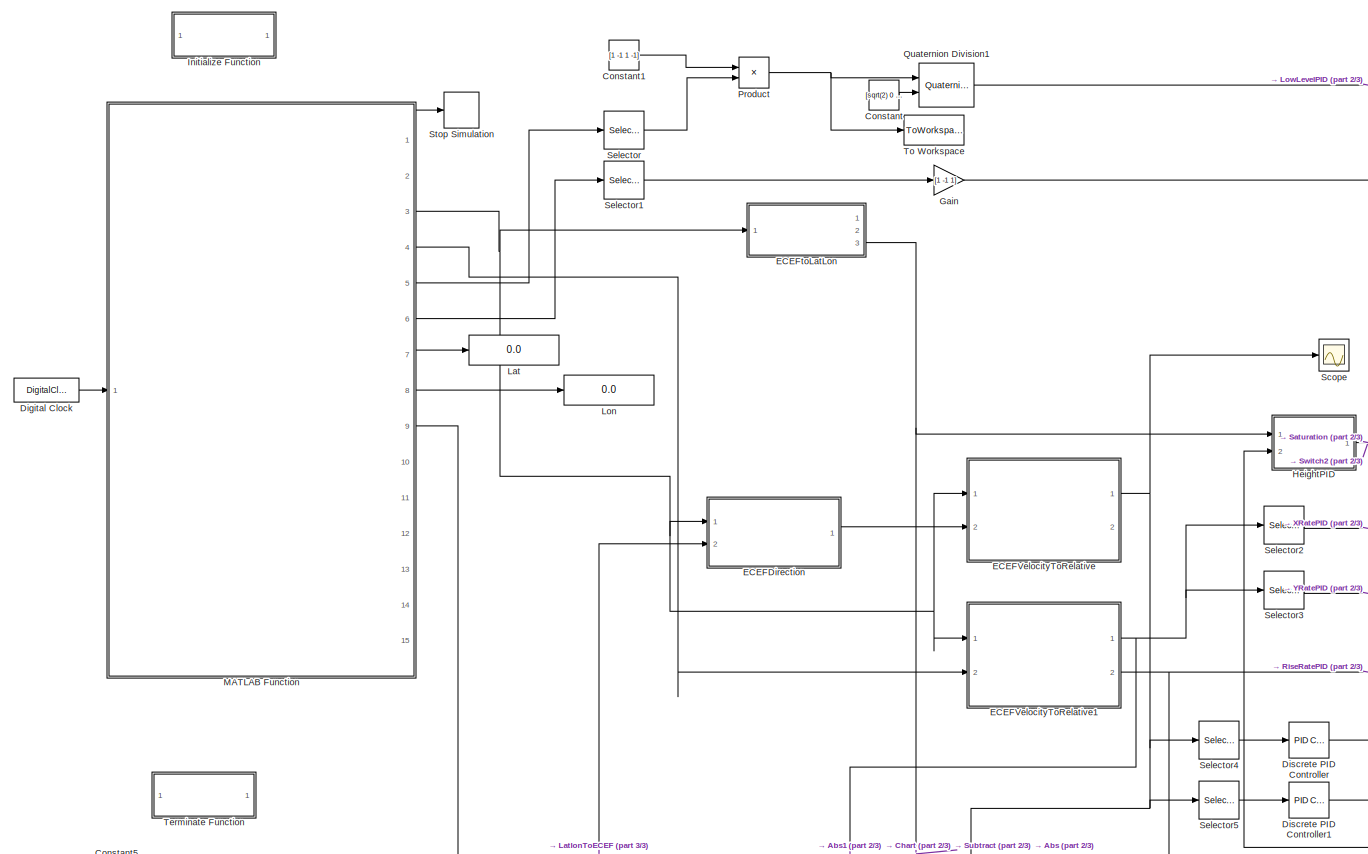
[diagram: root canvas - part 1/3, left side, full height]
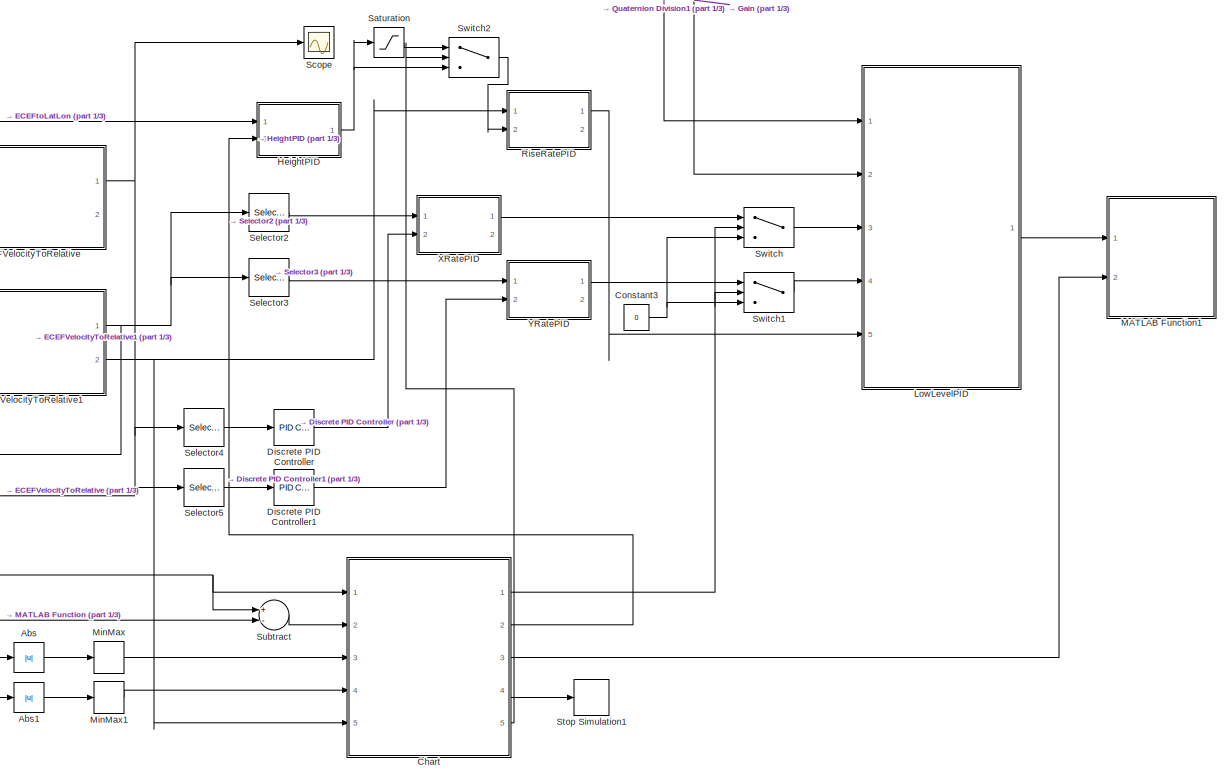
[diagram: root canvas - part 2/3, middle right region]
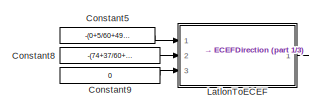
[diagram: root canvas - part 3/3, bottom left region]
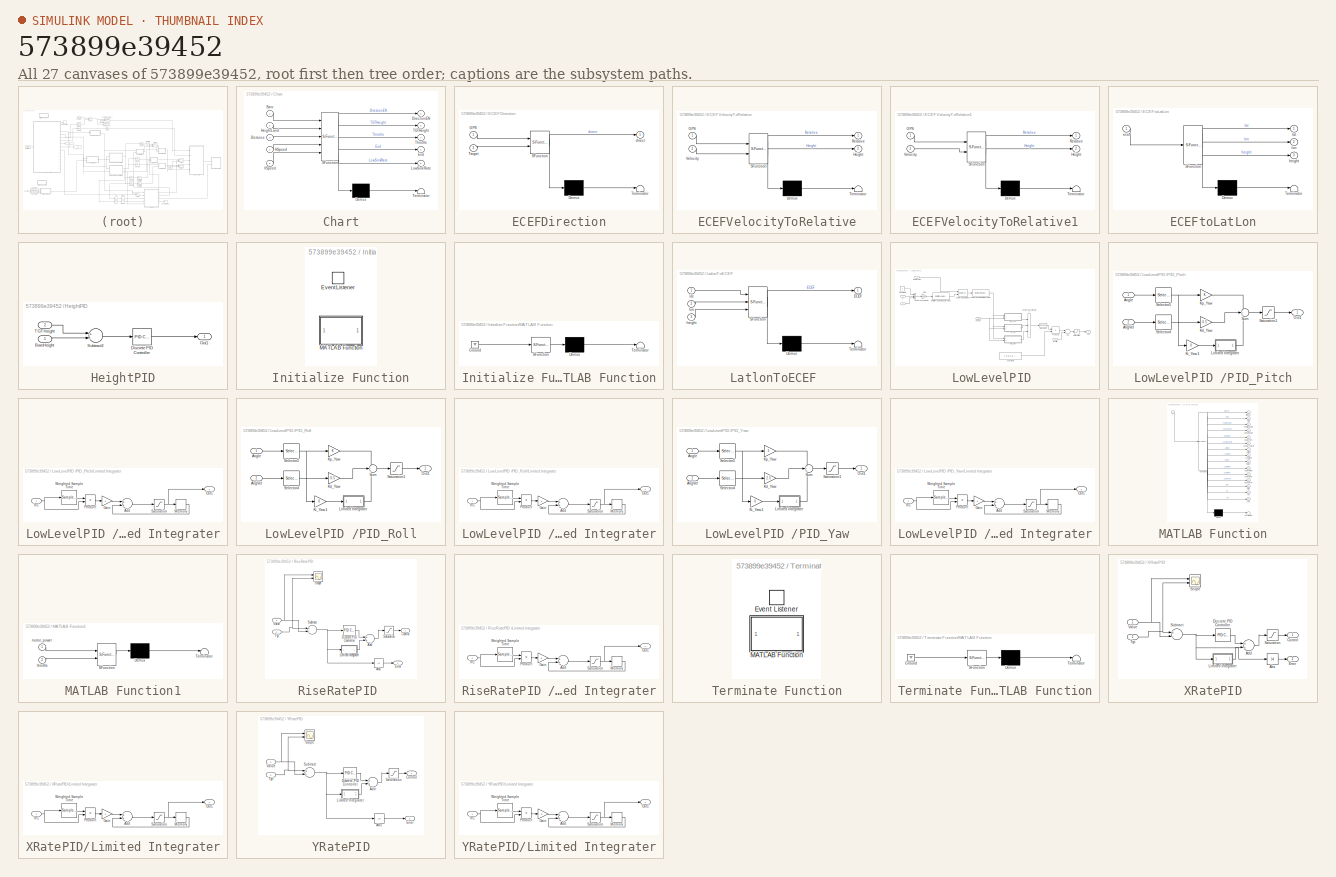
[diagram: thumbnail index - all 27 canvases of the model, root first then tree order]
MODEL slx_573899e39452
KIND model
CONFIG AbsTol = auto
CONFIG EnableMultiTasking = off
CONFIG FixedStep = auto
CONFIG MaxStep = auto
CONFIG MinStep = auto
CONFIG RelTol = 1e-3
CONFIG SampleTimeConstraint = Unconstrained
CONFIG Solver = VariableStepAuto
CONFIG SolverName = VariableStepAuto
CONFIG StartTime = 0.0
CONFIG StopTime = 200
BLOCK [Abs] Abs
  SaturateOnIntegerOverflow = off
BLOCK [Abs] Abs1
  SaturateOnIntegerOverflow = off
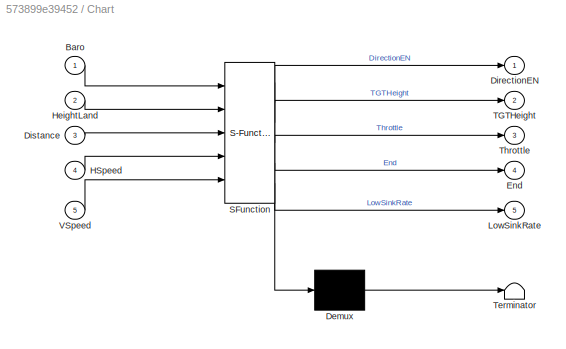
BLOCK [SubSystem] Chart
  ErrorFcn = Stateflow.Translate.translate
  PermitHierarchicalResolution = ExplicitOnly
  Ports = [5, 5]
  RequestExecContextInheritance = off
  SFBlockType = Chart
  TreatAsAtomicUnit = on
BLOCK [Demux] Chart/ Demux 
  Outputs = 1
  Ports = [1, 1]
BLOCK [S-Function] Chart/ SFunction 
  EnableBusSupport = on
  FunctionName = sf_sfun
  PortCounts = [5 6]
  Ports = [5, 6]
  SFcnIsStateOwnerBlock = off
  SFunctionDeploymentMode = off
  Tag = Stateflow S-Function main 10
BLOCK [Terminator] Chart/ Terminator 
BLOCK [Inport] Chart/Baro
  IconDisplay = Port number
BLOCK [Outport] Chart/DirectionEN
  IconDisplay = Port number
BLOCK [Inport] Chart/Distance
  IconDisplay = Port number
  Port = 3
BLOCK [Outport] Chart/End
  IconDisplay = Port number
  Port = 4
BLOCK [Inport] Chart/HSpeed
  IconDisplay = Port number
  Port = 4
BLOCK [Inport] Chart/HeightLand
  IconDisplay = Port number
  Port = 2
BLOCK [Outport] Chart/LowSinkRate
  IconDisplay = Port number
  Port = 5
BLOCK [Outport] Chart/TGTHeight
  IconDisplay = Port number
  Port = 2
BLOCK [Outport] Chart/Throttle
  IconDisplay = Port number
  Port = 3
BLOCK [Inport] Chart/VSpeed
  IconDisplay = Port number
  Port = 5
BLOCK [Constant] Constant
  Value = [sqrt(2) 0 -sqrt(2) 0]/2
BLOCK [Constant] Constant1
  Value = [1 -1 1 -1]
BLOCK [Constant] Constant3
  Value = 0
BLOCK [Constant] Constant5
  Value = -(0+5/60+49/3600)
BLOCK [Constant] Constant8
  Value = -(74+37/60+3/3600)
BLOCK [Constant] Constant9
  Value = 0
BLOCK [DigitalClock] Digital Clock
  SampleTime = 0.01
BLOCK [Reference] Discrete PID Controller  REF=simulink/Continuous/PID Controller
  Ports = [1, 1]
  SourceBlock = simulink/Continuous/PID Controller
  SourceProductBaseCode = SL
  SourceProductName = Simulink
  SourceType = PID 1dof
BLOCK [Reference] Discrete PID Controller1  REF=simulink/Continuous/PID Controller
  Ports = [1, 1]
  SourceBlock = simulink/Continuous/PID Controller
  SourceProductBaseCode = SL
  SourceProductName = Simulink
  SourceType = PID 1dof
BLOCK [SubSystem] ECEFDirection
  ErrorFcn = Stateflow.Translate.translate
  PermitHierarchicalResolution = ExplicitOnly
  Ports = [2, 1]
  RequestExecContextInheritance = off
  SFBlockType = MATLAB Function
  TreatAsAtomicUnit = on
BLOCK [Demux] ECEFDirection/ Demux 
  Outputs = 1
  Ports = [1, 1]
BLOCK [S-Function] ECEFDirection/ SFunction 
  EnableBusSupport = on
  FunctionName = sf_sfun
  PortCounts = [2 2]
  Ports = [2, 2]
  SFcnIsStateOwnerBlock = off
  SFunctionDeploymentMode = off
  Tag = Stateflow S-Function main 7
BLOCK [Terminator] ECEFDirection/ Terminator 
BLOCK [Inport] ECEFDirection/GPS
  IconDisplay = Port number
BLOCK [Inport] ECEFDirection/Target
  IconDisplay = Port number
  Port = 2
BLOCK [Outport] ECEFDirection/direct
  IconDisplay = Port number
BLOCK [SubSystem] ECEFVelocityToRelative
  ErrorFcn = Stateflow.Translate.translate
  PermitHierarchicalResolution = ExplicitOnly
  Ports = [2, 2]
  RequestExecContextInheritance = off
  SFBlockType = MATLAB Function
  TreatAsAtomicUnit = on
BLOCK [Demux] ECEFVelocityToRelative/ Demux 
  Outputs = 1
  Ports = [1, 1]
BLOCK [S-Function] ECEFVelocityToRelative/ SFunction 
  EnableBusSupport = on
  FunctionName = sf_sfun
  PortCounts = [2 3]
  Ports = [2, 3]
  SFcnIsStateOwnerBlock = off
  SFunctionDeploymentMode = off
  Tag = Stateflow S-Function main 8
BLOCK [Terminator] ECEFVelocityToRelative/ Terminator 
BLOCK [Inport] ECEFVelocityToRelative/GPS
  IconDisplay = Port number
BLOCK [Outport] ECEFVelocityToRelative/Height
  IconDisplay = Port number
  Port = 2
BLOCK [Outport] ECEFVelocityToRelative/Relative
  IconDisplay = Port number
BLOCK [Inport] ECEFVelocityToRelative/Velocity
  IconDisplay = Port number
  Port = 2
BLOCK [SubSystem] ECEFVelocityToRelative1
  ErrorFcn = Stateflow.Translate.translate
  PermitHierarchicalResolution = ExplicitOnly
  Ports = [2, 2]
  RequestExecContextInheritance = off
  SFBlockType = MATLAB Function
  TreatAsAtomicUnit = on
BLOCK [Demux] ECEFVelocityToRelative1/ Demux 
  Outputs = 1
  Ports = [1, 1]
BLOCK [S-Function] ECEFVelocityToRelative1/ SFunction 
  EnableBusSupport = on
  FunctionName = sf_sfun
  PortCounts = [2 3]
  Ports = [2, 3]
  SFcnIsStateOwnerBlock = off
  SFunctionDeploymentMode = off
  Tag = Stateflow S-Function main 9
BLOCK [Terminator] ECEFVelocityToRelative1/ Terminator 
BLOCK [Inport] ECEFVelocityToRelative1/GPS
  IconDisplay = Port number
BLOCK [Outport] ECEFVelocityToRelative1/Height
  IconDisplay = Port number
  Port = 2
BLOCK [Outport] ECEFVelocityToRelative1/Relative
  IconDisplay = Port number
BLOCK [Inport] ECEFVelocityToRelative1/Velocity
  IconDisplay = Port number
  Port = 2
BLOCK [SubSystem] ECEFtoLatLon
  ErrorFcn = Stateflow.Translate.translate
  PermitHierarchicalResolution = ExplicitOnly
  Ports = [1, 3]
  RequestExecContextInheritance = off
  SFBlockType = MATLAB Function
  TreatAsAtomicUnit = on
BLOCK [Demux] ECEFtoLatLon/ Demux 
  Outputs = 1
  Ports = [1, 1]
BLOCK [S-Function] ECEFtoLatLon/ SFunction 
  EnableBusSupport = on
  FunctionName = sf_sfun
  PortCounts = [1 4]
  Ports = [1, 4]
  SFcnIsStateOwnerBlock = off
  SFunctionDeploymentMode = off
  Tag = Stateflow S-Function main 6
BLOCK [Terminator] ECEFtoLatLon/ Terminator 
BLOCK [Inport] ECEFtoLatLon/ecef
  IconDisplay = Port number
BLOCK [Outport] ECEFtoLatLon/height
  IconDisplay = Port number
  Port = 3
BLOCK [Outport] ECEFtoLatLon/lat
  IconDisplay = Port number
BLOCK [Outport] ECEFtoLatLon/lon
  IconDisplay = Port number
  Port = 2
BLOCK [Gain] Gain
  Gain = [1 -1 1]
  OutDataTypeStr = Inherit: Inherit via internal rule
  ParamDataTypeStr = Inherit: Inherit via internal rule
  SaturateOnIntegerOverflow = off
BLOCK [SubSystem] HeightPID
  Ports = [2, 1]
  RequestExecContextInheritance = off
BLOCK [Inport] HeightPID/BaroHeight
  IconDisplay = Port number
BLOCK [Reference] HeightPID/Discrete PID Controller  REF=simulink/Continuous/PID Controller
  Ports = [1, 1]
  SourceBlock = simulink/Continuous/PID Controller
  SourceProductBaseCode = SL
  SourceProductName = Simulink
  SourceType = PID 1dof
BLOCK [Outport] HeightPID/Out1
  IconDisplay = Port number
BLOCK [Sum] HeightPID/Subtract2
  InputSameDT = off
  Inputs = +-
  OutDataTypeStr = Inherit: Inherit via internal rule
  Ports = [2, 1]
  SaturateOnIntegerOverflow = off
BLOCK [Inport] HeightPID/TGTHeight
  IconDisplay = Port number
  Port = 2
BLOCK [SubSystem] Initialize Function
  Ports = []
  RequestExecContextInheritance = off
  TreatAsAtomicUnit = on
BLOCK [EventListener] Initialize Function/Event Listener
  DisableCoverage = on
  EventName = reset
BLOCK [SubSystem] Initialize Function/MATLAB Function
  ErrorFcn = Stateflow.Translate.translate
  PermitHierarchicalResolution = ExplicitOnly
  Ports = []
  RequestExecContextInheritance = off
  SFBlockType = MATLAB Function
  TreatAsAtomicUnit = on
BLOCK [Demux] Initialize Function/MATLAB Function/ Demux 
  Outputs = 1
  Ports = [1, 1]
BLOCK [Ground] Initialize Function/MATLAB Function/ Ground 
BLOCK [S-Function] Initialize Function/MATLAB Function/ SFunction 
  EnableBusSupport = on
  FunctionName = sf_sfun
  PortCounts = [1 1]
  Ports = [1, 1]
  SFcnIsStateOwnerBlock = off
  SFunctionDeploymentMode = off
  Tag = Stateflow S-Function main 1
BLOCK [Terminator] Initialize Function/MATLAB Function/ Terminator 
BLOCK [Display] Lat
  Decimation = 1
  Ports = [1]
BLOCK [SubSystem] LatlonToECEF 
  ErrorFcn = Stateflow.Translate.translate
  PermitHierarchicalResolution = ExplicitOnly
  Ports = [3, 1]
  RequestExecContextInheritance = off
  SFBlockType = MATLAB Function
  TreatAsAtomicUnit = on
BLOCK [Demux] LatlonToECEF / Demux 
  Outputs = 1
  Ports = [1, 1]
BLOCK [S-Function] LatlonToECEF / SFunction 
  EnableBusSupport = on
  FunctionName = sf_sfun
  PortCounts = [3 2]
  Ports = [3, 2]
  SFcnIsStateOwnerBlock = off
  SFunctionDeploymentMode = off
  Tag = Stateflow S-Function main 5
BLOCK [Terminator] LatlonToECEF / Terminator 
BLOCK [Outport] LatlonToECEF /ECEF
  IconDisplay = Port number
BLOCK [Inport] LatlonToECEF /height
  IconDisplay = Port number
  Port = 3
BLOCK [Inport] LatlonToECEF /lat
  IconDisplay = Port number
BLOCK [Inport] LatlonToECEF /lon
  IconDisplay = Port number
  Port = 2
BLOCK [Display] Lon
  Decimation = 1
  Ports = [1]
BLOCK [SubSystem] LowLevelPID 
  Ports = [5, 1]
  RequestExecContextInheritance = off
BLOCK [Sum] LowLevelPID /Add
  InputSameDT = off
  OutDataTypeStr = Inherit: Inherit via internal rule
  Ports = [2, 1]
  SaturateOnIntegerOverflow = off
BLOCK [Inport] LowLevelPID /AngVel
  IconDisplay = Port number
  Port = 2
BLOCK [Constant] LowLevelPID /Constant2
  Value = [-0.5 0.5 -0.5 0.5;1 0 -1 0;0 1 0 -1]
BLOCK [Constant] LowLevelPID /Constant5
  Value = 0
BLOCK [Gain] LowLevelPID /Gain
  Gain = pi/180
  OutDataTypeStr = Inherit: Inherit via internal rule
  ParamDataTypeStr = Inherit: Inherit via internal rule
  SaturateOnIntegerOverflow = off
BLOCK [Outport] LowLevelPID /Out1
  IconDisplay = Port number
BLOCK [SubSystem] LowLevelPID /PID_Pitch
  Ports = [2, 1]
  RequestExecContextInheritance = off
BLOCK [Inport] LowLevelPID /PID_Pitch/AngVel
  IconDisplay = Port number
  Port = 2
BLOCK [Inport] LowLevelPID /PID_Pitch/Angle
  IconDisplay = Port number
BLOCK [Gain] LowLevelPID /PID_Pitch/Kd_Yaw
  Gain = 0.5
  OutDataTypeStr = Inherit: Inherit via internal rule
  ParamDataTypeStr = Inherit: Inherit via internal rule
  SaturateOnIntegerOverflow = off
BLOCK [Gain] LowLevelPID /PID_Pitch/Ki_Yaw1
  Gain = 0
  OutDataTypeStr = Inherit: Inherit via internal rule
  ParamDataTypeStr = Inherit: Inherit via internal rule
  SaturateOnIntegerOverflow = off
BLOCK [Gain] LowLevelPID /PID_Pitch/Kp_Yaw
  OutDataTypeStr = Inherit: Inherit via internal rule
  ParamDataTypeStr = Inherit: Inherit via internal rule
  SaturateOnIntegerOverflow = off
BLOCK [SubSystem] LowLevelPID /PID_Pitch/Limited Integrater
  Ports = [1, 1]
  RequestExecContextInheritance = off
BLOCK [Sum] LowLevelPID /PID_Pitch/Limited Integrater/Add
  InputSameDT = off
  OutDataTypeStr = Inherit: Inherit via internal rule
  Ports = [2, 1]
  SaturateOnIntegerOverflow = off
BLOCK [Gain] LowLevelPID /PID_Pitch/Limited Integrater/Gain
  OutDataTypeStr = Inherit: Inherit via internal rule
  ParamDataTypeStr = Inherit: Inherit via internal rule
  SaturateOnIntegerOverflow = off
BLOCK [Inport] LowLevelPID /PID_Pitch/Limited Integrater/In1
  IconDisplay = Port number
BLOCK [Memory] LowLevelPID /PID_Pitch/Limited Integrater/Memory
BLOCK [Outport] LowLevelPID /PID_Pitch/Limited Integrater/Out1
  IconDisplay = Port number
BLOCK [Product] LowLevelPID /PID_Pitch/Limited Integrater/Product
  InputSameDT = off
  OutDataTypeStr = Inherit: Inherit via internal rule
  Ports = [2, 1]
  RndMeth = Floor
  SaturateOnIntegerOverflow = off
BLOCK [Saturate] LowLevelPID /PID_Pitch/Limited Integrater/Saturation
  InputPortMap = u0
  Ports = [1, 1]
BLOCK [SampleTimeMath] LowLevelPID /PID_Pitch/Limited Integrater/Weighted Sample Time
  TsampMathOp = Ts Only
BLOCK [Outport] LowLevelPID /PID_Pitch/Out1
  IconDisplay = Port number
BLOCK [Saturate] LowLevelPID /PID_Pitch/Saturation1
  InputPortMap = u0
  Ports = [1, 1]
BLOCK [Selector] LowLevelPID /PID_Pitch/Selector4
  IndexOptions = Index vector (dialog)
  Indices = 2
  InputPortWidth = 3
  OutputSizes = 1
  Ports = [1, 1]
BLOCK [Selector] LowLevelPID /PID_Pitch/Selector5
  IndexOptions = Index vector (dialog)
  Indices = 2
  InputPortWidth = 3
  OutputSizes = 1
  Ports = [1, 1]
BLOCK [Sum] LowLevelPID /PID_Pitch/Sum
  IconShape = round
  InputSameDT = off
  Inputs = +++
  OutDataTypeStr = Inherit: Inherit via internal rule
  Ports = [3, 1]
  SaturateOnIntegerOverflow = off
BLOCK [SubSystem] LowLevelPID /PID_Roll
  Ports = [2, 1]
  RequestExecContextInheritance = off
BLOCK [Inport] LowLevelPID /PID_Roll/AngVel
  IconDisplay = Port number
  Port = 2
BLOCK [Inport] LowLevelPID /PID_Roll/Angle
  IconDisplay = Port number
BLOCK [Gain] LowLevelPID /PID_Roll/Kd_Yaw
  Gain = 0.5
  OutDataTypeStr = Inherit: Inherit via internal rule
  ParamDataTypeStr = Inherit: Inherit via internal rule
  SaturateOnIntegerOverflow = off
BLOCK [Gain] LowLevelPID /PID_Roll/Ki_Yaw1
  Gain = 0
  OutDataTypeStr = Inherit: Inherit via internal rule
  ParamDataTypeStr = Inherit: Inherit via internal rule
  SaturateOnIntegerOverflow = off
BLOCK [Gain] LowLevelPID /PID_Roll/Kp_Yaw
  OutDataTypeStr = Inherit: Inherit via internal rule
  ParamDataTypeStr = Inherit: Inherit via internal rule
  SaturateOnIntegerOverflow = off
BLOCK [SubSystem] LowLevelPID /PID_Roll/Limited Integrater
  Ports = [1, 1]
  RequestExecContextInheritance = off
BLOCK [Sum] LowLevelPID /PID_Roll/Limited Integrater/Add
  InputSameDT = off
  OutDataTypeStr = Inherit: Inherit via internal rule
  Ports = [2, 1]
  SaturateOnIntegerOverflow = off
BLOCK [Gain] LowLevelPID /PID_Roll/Limited Integrater/Gain
  OutDataTypeStr = Inherit: Inherit via internal rule
  ParamDataTypeStr = Inherit: Inherit via internal rule
  SaturateOnIntegerOverflow = off
BLOCK [Inport] LowLevelPID /PID_Roll/Limited Integrater/In1
  IconDisplay = Port number
BLOCK [Memory] LowLevelPID /PID_Roll/Limited Integrater/Memory
BLOCK [Outport] LowLevelPID /PID_Roll/Limited Integrater/Out1
  IconDisplay = Port number
BLOCK [Product] LowLevelPID /PID_Roll/Limited Integrater/Product
  InputSameDT = off
  OutDataTypeStr = Inherit: Inherit via internal rule
  Ports = [2, 1]
  RndMeth = Floor
  SaturateOnIntegerOverflow = off
BLOCK [Saturate] LowLevelPID /PID_Roll/Limited Integrater/Saturation
  InputPortMap = u0
  Ports = [1, 1]
BLOCK [SampleTimeMath] LowLevelPID /PID_Roll/Limited Integrater/Weighted Sample Time
  TsampMathOp = Ts Only
BLOCK [Outport] LowLevelPID /PID_Roll/Out1
  IconDisplay = Port number
BLOCK [Saturate] LowLevelPID /PID_Roll/Saturation1
  InputPortMap = u0
  Ports = [1, 1]
BLOCK [Selector] LowLevelPID /PID_Roll/Selector4
  IndexOptions = Index vector (dialog)
  Indices = 3
  InputPortWidth = 3
  OutputSizes = 1
  Ports = [1, 1]
BLOCK [Selector] LowLevelPID /PID_Roll/Selector5
  IndexOptions = Index vector (dialog)
  Indices = 3
  InputPortWidth = 3
  OutputSizes = 1
  Ports = [1, 1]
BLOCK [Sum] LowLevelPID /PID_Roll/Sum
  IconShape = round
  InputSameDT = off
  Inputs = +++
  OutDataTypeStr = Inherit: Inherit via internal rule
  Ports = [3, 1]
  SaturateOnIntegerOverflow = off
BLOCK [SubSystem] LowLevelPID /PID_Yaw
  Ports = [2, 1]
  RequestExecContextInheritance = off
BLOCK [Inport] LowLevelPID /PID_Yaw/AngVel
  IconDisplay = Port number
  Port = 2
BLOCK [Inport] LowLevelPID /PID_Yaw/Angle
  IconDisplay = Port number
BLOCK [Gain] LowLevelPID /PID_Yaw/Kd_Yaw
  Gain = 2.5
  OutDataTypeStr = Inherit: Inherit via internal rule
  ParamDataTypeStr = Inherit: Inherit via internal rule
  SaturateOnIntegerOverflow = off
BLOCK [Gain] LowLevelPID /PID_Yaw/Ki_Yaw1
  Gain = 0
  OutDataTypeStr = Inherit: Inherit via internal rule
  ParamDataTypeStr = Inherit: Inherit via internal rule
  SaturateOnIntegerOverflow = off
BLOCK [Gain] LowLevelPID /PID_Yaw/Kp_Yaw
  Gain = 5
  OutDataTypeStr = Inherit: Inherit via internal rule
  ParamDataTypeStr = Inherit: Inherit via internal rule
  SaturateOnIntegerOverflow = off
BLOCK [SubSystem] LowLevelPID /PID_Yaw/Limited Integrater
  Ports = [1, 1]
  RequestExecContextInheritance = off
BLOCK [Sum] LowLevelPID /PID_Yaw/Limited Integrater/Add
  InputSameDT = off
  OutDataTypeStr = Inherit: Inherit via internal rule
  Ports = [2, 1]
  SaturateOnIntegerOverflow = off
BLOCK [Gain] LowLevelPID /PID_Yaw/Limited Integrater/Gain
  OutDataTypeStr = Inherit: Inherit via internal rule
  ParamDataTypeStr = Inherit: Inherit via internal rule
  SaturateOnIntegerOverflow = off
BLOCK [Inport] LowLevelPID /PID_Yaw/Limited Integrater/In1
  IconDisplay = Port number
BLOCK [Memory] LowLevelPID /PID_Yaw/Limited Integrater/Memory
BLOCK [Outport] LowLevelPID /PID_Yaw/Limited Integrater/Out1
  IconDisplay = Port number
BLOCK [Product] LowLevelPID /PID_Yaw/Limited Integrater/Product
  InputSameDT = off
  OutDataTypeStr = Inherit: Inherit via internal rule
  Ports = [2, 1]
  RndMeth = Floor
  SaturateOnIntegerOverflow = off
BLOCK [Saturate] LowLevelPID /PID_Yaw/Limited Integrater/Saturation
  InputPortMap = u0
  Ports = [1, 1]
BLOCK [SampleTimeMath] LowLevelPID /PID_Yaw/Limited Integrater/Weighted Sample Time
  TsampMathOp = Ts Only
BLOCK [Outport] LowLevelPID /PID_Yaw/Out1
  IconDisplay = Port number
BLOCK [Saturate] LowLevelPID /PID_Yaw/Saturation1
  InputPortMap = u0
  Ports = [1, 1]
BLOCK [Selector] LowLevelPID /PID_Yaw/Selector4
  IndexOptions = Index vector (dialog)
  Indices = 1
  InputPortWidth = 3
  OutputSizes = 1
  Ports = [1, 1]
BLOCK [Selector] LowLevelPID /PID_Yaw/Selector5
  IndexOptions = Index vector (dialog)
  Indices = 1
  InputPortWidth = 3
  OutputSizes = 1
  Ports = [1, 1]
BLOCK [Sum] LowLevelPID /PID_Yaw/Sum
  IconShape = round
  InputSameDT = off
  Inputs = +++
  OutDataTypeStr = Inherit: Inherit via internal rule
  Ports = [3, 1]
  SaturateOnIntegerOverflow = off
BLOCK [Product] LowLevelPID /Product1
  InputSameDT = off
  Multiplication = Matrix(*)
  OutDataTypeStr = Inherit: Inherit via internal rule
  Ports = [2, 1]
  RndMeth = Floor
  SaturateOnIntegerOverflow = off
BLOCK [Inport] LowLevelPID /Quaternion 
  IconDisplay = Port number
BLOCK [Reference] LowLevelPID /Quaternion Division2  REF=aerolibutil/Quaternion
Division
  Ports = [2, 1]
  SourceBlock = aerolibutil/Quaternion\nDivision
  SourceProductBaseCode = AE
  SourceProductName = Aerospace Blockset
  SourceType = Quaternion Division
BLOCK [Reference] LowLevelPID /Quaternions to Rotation Angles  REF=sharedtransform/Quaternions to Rotation Angles
  AttributesFormatString = Rotation Order: %<rotationOrder>
  Ports = [1, 1]
  SourceBlock = sharedtransform/Quaternions to Rotation Angles
  SourceProductBaseCode = AE
  SourceProductName = Aerospace Blockset
  SourceType = Quat2Ang
BLOCK [Reshape] LowLevelPID /Reshape
  OutputDimensionality = Customize
  OutputDimensions = [1,3]
  Ports = [1, 1]
BLOCK [Reference] LowLevelPID /Rotation Angles to Quaternions  REF=sharedtransform/Rotation Angles to Quaternions
  AttributesFormatString = Rotation Order: %<rotationOrder>
  Ports = [1, 1]
  SourceBlock = sharedtransform/Rotation Angles to Quaternions
  SourceProductBaseCode = AE
  SourceProductName = Aerospace Blockset
  SourceType = Ang2Quat
BLOCK [Saturate] LowLevelPID /Saturation
  InputPortMap = u0
  LowerLimit = 0
  Ports = [1, 1]
  UpperLimit = 1
BLOCK [Concatenate] LowLevelPID /Vector Concatenate
  NumInputs = 3
  Ports = [3, 1]
BLOCK [Concatenate] LowLevelPID /Vector Concatenate2
  NumInputs = 3
  Ports = [3, 1]
BLOCK [Inport] LowLevelPID /throttle
  IconDisplay = Port number
  Port = 5
BLOCK [Inport] LowLevelPID /x
  IconDisplay = Port number
  Port = 3
BLOCK [Inport] LowLevelPID /y
  IconDisplay = Port number
  Port = 4
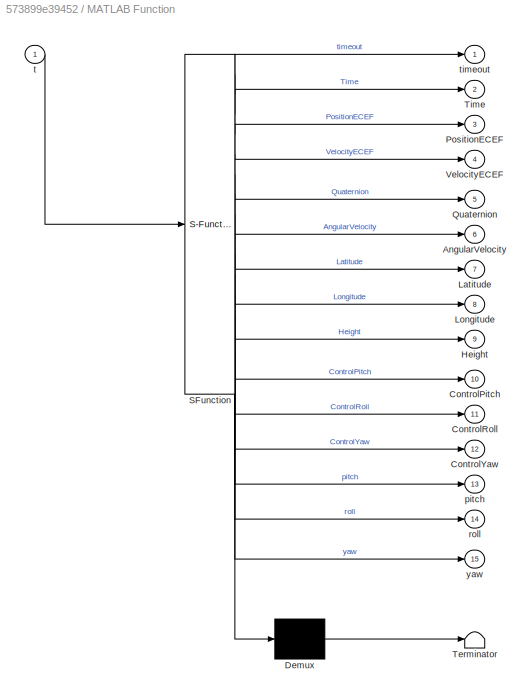
BLOCK [SubSystem] MATLAB Function
  ErrorFcn = Stateflow.Translate.translate
  PermitHierarchicalResolution = ExplicitOnly
  Ports = [1, 15]
  RequestExecContextInheritance = off
  SFBlockType = MATLAB Function
  TreatAsAtomicUnit = on
BLOCK [Demux] MATLAB Function/ Demux 
  Outputs = 1
  Ports = [1, 1]
BLOCK [S-Function] MATLAB Function/ SFunction 
  EnableBusSupport = on
  FunctionName = sf_sfun
  PortCounts = [1 16]
  Ports = [1, 16]
  SFcnIsStateOwnerBlock = off
  SFunctionDeploymentMode = off
  Tag = Stateflow S-Function main 2
BLOCK [Terminator] MATLAB Function/ Terminator 
BLOCK [Outport] MATLAB Function/AngularVelocity
  IconDisplay = Port number
  Port = 6
BLOCK [Outport] MATLAB Function/ControlPitch
  IconDisplay = Port number
  Port = 10
BLOCK [Outport] MATLAB Function/ControlRoll
  IconDisplay = Port number
  Port = 11
BLOCK [Outport] MATLAB Function/ControlYaw
  IconDisplay = Port number
  Port = 12
BLOCK [Outport] MATLAB Function/Height
  IconDisplay = Port number
  Port = 9
BLOCK [Outport] MATLAB Function/Latitude
  IconDisplay = Port number
  Port = 7
BLOCK [Outport] MATLAB Function/Longitude
  IconDisplay = Port number
  Port = 8
BLOCK [Outport] MATLAB Function/PositionECEF
  IconDisplay = Port number
  Port = 3
BLOCK [Outport] MATLAB Function/Quaternion
  IconDisplay = Port number
  Port = 5
BLOCK [Outport] MATLAB Function/Time
  IconDisplay = Port number
  Port = 2
BLOCK [Outport] MATLAB Function/VelocityECEF
  IconDisplay = Port number
  Port = 4
BLOCK [Outport] MATLAB Function/pitch
  IconDisplay = Port number
  Port = 13
BLOCK [Outport] MATLAB Function/roll
  IconDisplay = Port number
  Port = 14
BLOCK [Inport] MATLAB Function/t
  IconDisplay = Port number
BLOCK [Outport] MATLAB Function/timeout
  IconDisplay = Port number
BLOCK [Outport] MATLAB Function/yaw
  IconDisplay = Port number
  Port = 15
BLOCK [SubSystem] MATLAB Function1
  ErrorFcn = Stateflow.Translate.translate
  PermitHierarchicalResolution = ExplicitOnly
  Ports = [2]
  RequestExecContextInheritance = off
  SFBlockType = MATLAB Function
  TreatAsAtomicUnit = on
BLOCK [Demux] MATLAB Function1/ Demux 
  Outputs = 1
  Ports = [1, 1]
BLOCK [S-Function] MATLAB Function1/ SFunction 
  EnableBusSupport = on
  FunctionName = sf_sfun
  PortCounts = [2 1]
  Ports = [2, 1]
  SFcnIsStateOwnerBlock = off
  SFunctionDeploymentMode = off
  Tag = Stateflow S-Function main 4
BLOCK [Terminator] MATLAB Function1/ Terminator 
BLOCK [Inport] MATLAB Function1/motor_power
  IconDisplay = Port number
BLOCK [Inport] MATLAB Function1/throttle
  IconDisplay = Port number
  Port = 2
BLOCK [MinMax] MinMax
  Function = max
  InputSameDT = off
  Ports = [1, 1]
  SaturateOnIntegerOverflow = off
BLOCK [MinMax] MinMax1
  Function = max
  InputSameDT = off
  Ports = [1, 1]
  SaturateOnIntegerOverflow = off
BLOCK [Product] Product
  InputSameDT = off
  OutDataTypeStr = Inherit: Inherit via internal rule
  Ports = [2, 1]
  RndMeth = Floor
  SaturateOnIntegerOverflow = off
BLOCK [Reference] Quaternion Division1  REF=aerolibutil/Quaternion
Division
  Ports = [2, 1]
  SourceBlock = aerolibutil/Quaternion\nDivision
  SourceProductBaseCode = AE
  SourceProductName = Aerospace Blockset
  SourceType = Quaternion Division
BLOCK [SubSystem] RiseRatePID 
  Ports = [2, 2]
  RequestExecContextInheritance = off
BLOCK [Abs] RiseRatePID /Abs
  SaturateOnIntegerOverflow = off
BLOCK [Sum] RiseRatePID /Add
  InputSameDT = off
  OutDataTypeStr = Inherit: Inherit via internal rule
  Ports = [2, 1]
  SaturateOnIntegerOverflow = off
BLOCK [Outport] RiseRatePID /Control
  IconDisplay = Port number
BLOCK [Reference] RiseRatePID /Discrete PID Controller  REF=simulink/Continuous/PID Controller
  Ports = [1, 1]
  SourceBlock = simulink/Continuous/PID Controller
  SourceProductBaseCode = SL
  SourceProductName = Simulink
  SourceType = PID 1dof
BLOCK [Outport] RiseRatePID /Error
  IconDisplay = Port number
  Port = 2
BLOCK [SubSystem] RiseRatePID /Limited Integrater
  Ports = [1, 1]
  RequestExecContextInheritance = off
BLOCK [Sum] RiseRatePID /Limited Integrater/Add
  InputSameDT = off
  OutDataTypeStr = Inherit: Inherit via internal rule
  Ports = [2, 1]
  SaturateOnIntegerOverflow = off
BLOCK [Gain] RiseRatePID /Limited Integrater/Gain
  Gain = 5
  OutDataTypeStr = Inherit: Inherit via internal rule
  ParamDataTypeStr = Inherit: Inherit via internal rule
  SaturateOnIntegerOverflow = off
BLOCK [Inport] RiseRatePID /Limited Integrater/In1
  IconDisplay = Port number
BLOCK [Memory] RiseRatePID /Limited Integrater/Memory
BLOCK [Outport] RiseRatePID /Limited Integrater/Out1
  IconDisplay = Port number
BLOCK [Product] RiseRatePID /Limited Integrater/Product
  InputSameDT = off
  OutDataTypeStr = Inherit: Inherit via internal rule
  Ports = [2, 1]
  RndMeth = Floor
  SaturateOnIntegerOverflow = off
BLOCK [Saturate] RiseRatePID /Limited Integrater/Saturation
  InputPortMap = u0
  Ports = [1, 1]
BLOCK [SampleTimeMath] RiseRatePID /Limited Integrater/Weighted Sample Time
  TsampMathOp = Ts Only
BLOCK [Saturate] RiseRatePID /Saturation
  InputPortMap = u0
  LowerLimit = 0.25
  Ports = [1, 1]
  UpperLimit = 0.75
BLOCK [Scope] RiseRatePID /Scope
  Floating = off
  NumInputPorts = 2
  Ports = [2]
  ScopeSpecificationString = Simulink.scopes.TimeScopeBlockCfg('CurrentConfiguration', extmgr.ConfigurationSet(extmgr.Configuration('Core','General UI',true),extmgr.Configuration('Core','Source UI',true),extmgr.Configuration('Sources','WiredSimulink',true,'DataLoggingVariableName','ScopeData1'),extmgr.Configuration('Visuals','Time Domain',true,'SerializedDisplays',{struct('MinYLimReal','-19.16018','MaxYLimReal','13.24066','YL...<+1480ch>
BLOCK [Sum] RiseRatePID /Subtract
  InputSameDT = off
  Inputs = +-
  OutDataTypeStr = Inherit: Inherit via internal rule
  Ports = [2, 1]
  SaturateOnIntegerOverflow = off
BLOCK [Inport] RiseRatePID /Tgt
  IconDisplay = Port number
  Port = 2
BLOCK [Inport] RiseRatePID /Value 
  IconDisplay = Port number
BLOCK [Saturate] Saturation
  InputPortMap = u0
  Ports = [1, 1]
  UpperLimit = inf
BLOCK [Scope] Scope
  Floating = off
  NumInputPorts = 1
  Ports = [1]
  ScopeSpecificationString = Simulink.scopes.TimeScopeBlockCfg('CurrentConfiguration', extmgr.ConfigurationSet(extmgr.Configuration('Core','General UI',true),extmgr.Configuration('Core','Source UI',true),extmgr.Configuration('Sources','WiredSimulink',true,'DataLoggingVariableName','ScopeData3'),extmgr.Configuration('Visuals','Time Domain',true,'SerializedDisplays',{struct('MinYLimReal','-81.47977','MaxYLimReal','705.36902','Y...<+1471ch>
BLOCK [Selector] Selector
  IndexOptions = Index vector (dialog)
  Indices = [4 1 2 3]
  InputPortWidth = 4
  OutputSizes = 1
  Ports = [1, 1]
BLOCK [Selector] Selector1
  IndexOptions = Index vector (dialog)
  Indices = [1 3 2]
  InputPortWidth = 3
  OutputSizes = 1
  Ports = [1, 1]
BLOCK [Selector] Selector2
  IndexOptions = Index vector (dialog)
  Indices = 1
  InputPortWidth = 2
  OutputSizes = 1
  Ports = [1, 1]
BLOCK [Selector] Selector3
  IndexOptions = Index vector (dialog)
  Indices = 2
  InputPortWidth = 2
  OutputSizes = 1
  Ports = [1, 1]
BLOCK [Selector] Selector4
  IndexOptions = Index vector (dialog)
  Indices = 1
  InputPortWidth = 2
  OutputSizes = 1
  Ports = [1, 1]
BLOCK [Selector] Selector5
  IndexOptions = Index vector (dialog)
  Indices = 2
  InputPortWidth = 2
  OutputSizes = 1
  Ports = [1, 1]
BLOCK [Stop] Stop Simulation
BLOCK [Stop] Stop Simulation1
BLOCK [Sum] Subtract
  InputSameDT = off
  Inputs = +-
  OutDataTypeStr = Inherit: Inherit via internal rule
  Ports = [2, 1]
  SaturateOnIntegerOverflow = off
BLOCK [Switch] Switch
  Criteria = u2 > Threshold
  InputSameDT = off
  SaturateOnIntegerOverflow = off
BLOCK [Switch] Switch1
  Criteria = u2 > Threshold
  InputSameDT = off
  SaturateOnIntegerOverflow = off
BLOCK [Switch] Switch2
  Criteria = u2 > Threshold
  InputSameDT = off
  SaturateOnIntegerOverflow = off
BLOCK [SubSystem] Terminate Function
  Ports = []
  RequestExecContextInheritance = off
  TreatAsAtomicUnit = on
BLOCK [EventListener] Terminate Function/Event Listener
  DisableCoverage = on
  EventName = reset
  EventType = Terminate
BLOCK [SubSystem] Terminate Function/MATLAB Function
  ErrorFcn = Stateflow.Translate.translate
  PermitHierarchicalResolution = ExplicitOnly
  Ports = []
  RequestExecContextInheritance = off
  SFBlockType = MATLAB Function
  TreatAsAtomicUnit = on
BLOCK [Demux] Terminate Function/MATLAB Function/ Demux 
  Outputs = 1
  Ports = [1, 1]
BLOCK [Ground] Terminate Function/MATLAB Function/ Ground 
BLOCK [S-Function] Terminate Function/MATLAB Function/ SFunction 
  EnableBusSupport = on
  FunctionName = sf_sfun
  PortCounts = [1 1]
  Ports = [1, 1]
  SFcnIsStateOwnerBlock = off
  SFunctionDeploymentMode = off
  Tag = Stateflow S-Function main 3
BLOCK [Terminator] Terminate Function/MATLAB Function/ Terminator 
BLOCK [ToWorkspace] To Workspace
  FixptAsFi = on
  MaxDataPoints = inf
  Ports = [1]
  SampleTime = -1
  Save2DSignal = 2-D array (concatenate along first dimension)
  VariableName = quater
BLOCK [SubSystem] XRatePID
  Ports = [2, 2]
  RequestExecContextInheritance = off
BLOCK [Abs] XRatePID/Abs
  SaturateOnIntegerOverflow = off
BLOCK [Sum] XRatePID/Add
  InputSameDT = off
  OutDataTypeStr = Inherit: Inherit via internal rule
  Ports = [2, 1]
  SaturateOnIntegerOverflow = off
BLOCK [Outport] XRatePID/Control
  IconDisplay = Port number
BLOCK [Reference] XRatePID/Discrete PID Controller  REF=simulink/Continuous/PID Controller
  Ports = [1, 1]
  SourceBlock = simulink/Continuous/PID Controller
  SourceProductBaseCode = SL
  SourceProductName = Simulink
  SourceType = PID 1dof
BLOCK [Outport] XRatePID/Error
  IconDisplay = Port number
  Port = 2
BLOCK [SubSystem] XRatePID/Limited Integrater
  Ports = [1, 1]
  RequestExecContextInheritance = off
BLOCK [Sum] XRatePID/Limited Integrater/Add
  InputSameDT = off
  OutDataTypeStr = Inherit: Inherit via internal rule
  Ports = [2, 1]
  SaturateOnIntegerOverflow = off
BLOCK [Gain] XRatePID/Limited Integrater/Gain
  Gain = 0
  OutDataTypeStr = Inherit: Inherit via internal rule
  ParamDataTypeStr = Inherit: Inherit via internal rule
  SaturateOnIntegerOverflow = off
BLOCK [Inport] XRatePID/Limited Integrater/In1
  IconDisplay = Port number
BLOCK [Memory] XRatePID/Limited Integrater/Memory
BLOCK [Outport] XRatePID/Limited Integrater/Out1
  IconDisplay = Port number
BLOCK [Product] XRatePID/Limited Integrater/Product
  InputSameDT = off
  OutDataTypeStr = Inherit: Inherit via internal rule
  Ports = [2, 1]
  RndMeth = Floor
  SaturateOnIntegerOverflow = off
BLOCK [Saturate] XRatePID/Limited Integrater/Saturation
  InputPortMap = u0
  Ports = [1, 1]
BLOCK [SampleTimeMath] XRatePID/Limited Integrater/Weighted Sample Time
  TsampMathOp = Ts Only
BLOCK [Saturate] XRatePID/Saturation
  InputPortMap = u0
  LowerLimit = -10
  Ports = [1, 1]
  UpperLimit = 10
BLOCK [Scope] XRatePID/Scope
  Floating = off
  NumInputPorts = 2
  Ports = [2]
  ScopeSpecificationString = Simulink.scopes.TimeScopeBlockCfg('CurrentConfiguration', extmgr.ConfigurationSet(extmgr.Configuration('Core','General UI',true),extmgr.Configuration('Core','Source UI',true),extmgr.Configuration('Sources','WiredSimulink',true),extmgr.Configuration('Visuals','Time Domain',true,'SerializedDisplays',{struct('MinYLimReal','-2.81367','MaxYLimReal','1.72577','YLabelReal','','MinYLimMag','0.00000','MaxY...<+1366ch>
BLOCK [Sum] XRatePID/Subtract
  InputSameDT = off
  Inputs = +-
  OutDataTypeStr = Inherit: Inherit via internal rule
  Ports = [2, 1]
  SaturateOnIntegerOverflow = off
BLOCK [Inport] XRatePID/Tgt
  IconDisplay = Port number
  Port = 2
BLOCK [Inport] XRatePID/Value 
  IconDisplay = Port number
BLOCK [SubSystem] YRatePID
  Ports = [2, 2]
  RequestExecContextInheritance = off
BLOCK [Abs] YRatePID/Abs
  SaturateOnIntegerOverflow = off
BLOCK [Sum] YRatePID/Add
  InputSameDT = off
  OutDataTypeStr = Inherit: Inherit via internal rule
  Ports = [2, 1]
  SaturateOnIntegerOverflow = off
BLOCK [Outport] YRatePID/Control
  IconDisplay = Port number
BLOCK [Reference] YRatePID/Discrete PID Controller  REF=simulink/Continuous/PID Controller
  Ports = [1, 1]
  SourceBlock = simulink/Continuous/PID Controller
  SourceProductBaseCode = SL
  SourceProductName = Simulink
  SourceType = PID 1dof
BLOCK [Outport] YRatePID/Error
  IconDisplay = Port number
  Port = 2
BLOCK [SubSystem] YRatePID/Limited Integrater
  Ports = [1, 1]
  RequestExecContextInheritance = off
BLOCK [Sum] YRatePID/Limited Integrater/Add
  InputSameDT = off
  OutDataTypeStr = Inherit: Inherit via internal rule
  Ports = [2, 1]
  SaturateOnIntegerOverflow = off
BLOCK [Gain] YRatePID/Limited Integrater/Gain
  Gain = 0
  OutDataTypeStr = Inherit: Inherit via internal rule
  ParamDataTypeStr = Inherit: Inherit via internal rule
  SaturateOnIntegerOverflow = off
BLOCK [Inport] YRatePID/Limited Integrater/In1
  IconDisplay = Port number
BLOCK [Memory] YRatePID/Limited Integrater/Memory
BLOCK [Outport] YRatePID/Limited Integrater/Out1
  IconDisplay = Port number
BLOCK [Product] YRatePID/Limited Integrater/Product
  InputSameDT = off
  OutDataTypeStr = Inherit: Inherit via internal rule
  Ports = [2, 1]
  RndMeth = Floor
  SaturateOnIntegerOverflow = off
BLOCK [Saturate] YRatePID/Limited Integrater/Saturation
  InputPortMap = u0
  Ports = [1, 1]
BLOCK [SampleTimeMath] YRatePID/Limited Integrater/Weighted Sample Time
  TsampMathOp = Ts Only
BLOCK [Saturate] YRatePID/Saturation
  InputPortMap = u0
  LowerLimit = -10
  Ports = [1, 1]
  UpperLimit = 10
BLOCK [Scope] YRatePID/Scope
  Floating = off
  NumInputPorts = 2
  Ports = [2]
  ScopeSpecificationString = Simulink.scopes.TimeScopeBlockCfg('CurrentConfiguration', extmgr.ConfigurationSet(extmgr.Configuration('Core','General UI',true),extmgr.Configuration('Core','Source UI',true),extmgr.Configuration('Sources','WiredSimulink',true,'DataLoggingVariableName','ScopeData2'),extmgr.Configuration('Visuals','Time Domain',true,'SerializedDisplays',{struct('MinYLimReal','-23.28176','MaxYLimReal','2.6146','YLab...<+1404ch>
BLOCK [Sum] YRatePID/Subtract
  InputSameDT = off
  Inputs = +-
  OutDataTypeStr = Inherit: Inherit via internal rule
  Ports = [2, 1]
  SaturateOnIntegerOverflow = off
BLOCK [Inport] YRatePID/Tgt
  IconDisplay = Port number
  Port = 2
BLOCK [Inport] YRatePID/Value 
  IconDisplay = Port number
LINE Abs1:1 -> MinMax1:1
LINE Abs:1 -> MinMax:1
NET Chart:1 -> Switch1:2, Switch:2
LINE Chart:2 -> HeightPID:2
LINE Chart:3 -> MATLAB Function1:2
LINE Chart:4 -> Stop Simulation1:1
LINE Chart:5 -> Switch2:2
LINE Constant1:1 -> Product:1
NET Constant3:1 -> Switch1:3, Switch:3
LINE Constant5:1 -> LatlonToECEF :1
LINE Constant8:1 -> LatlonToECEF :2
LINE Constant9:1 -> LatlonToECEF :3
LINE Constant:1 -> Quaternion Division1:2
LINE Digital Clock:1 -> MATLAB Function:1
LINE Discrete PID Controller1:1 -> YRatePID:2
LINE Discrete PID Controller:1 -> XRatePID:2
LINE ECEFDirection:1 -> ECEFVelocityToRelative:2
NET ECEFVelocityToRelative1:1 -> Abs1:1, Selector2:1, Selector3:1
NET ECEFVelocityToRelative1:2 -> Chart:5, RiseRatePID :1
NET ECEFVelocityToRelative:1 -> Abs:1, Scope:1, Selector4:1, Selector5:1
NET ECEFtoLatLon:3 -> Chart:1, HeightPID:1, Subtract:1
LINE Gain:1 -> LowLevelPID :2
LINE HeightPID/BaroHeight:1 -> HeightPID/Subtract2:2
LINE HeightPID/Discrete PID Controller:1 -> HeightPID/Out1:1
LINE HeightPID/Subtract2:1 -> HeightPID/Discrete PID Controller:1
LINE HeightPID/TGTHeight:1 -> HeightPID/Subtract2:1
NET HeightPID:1 -> Saturation:1, Switch2:3
LINE LatlonToECEF :1 -> ECEFDirection:2
LINE LowLevelPID /Add:1 -> LowLevelPID /Saturation:1
NET LowLevelPID /AngVel:1 -> LowLevelPID /PID_Pitch:2, LowLevelPID /PID_Roll:2, LowLevelPID /PID_Yaw:2
LINE LowLevelPID /Constant2:1 -> LowLevelPID /Product1:2
LINE LowLevelPID /Constant5:1 -> LowLevelPID /Vector Concatenate:1
LINE LowLevelPID /Gain:1 -> LowLevelPID /Rotation Angles to Quaternions:1
LINE LowLevelPID /PID_Pitch/AngVel:1 -> LowLevelPID /PID_Pitch/Selector4:1
LINE LowLevelPID /PID_Pitch/Angle:1 -> LowLevelPID /PID_Pitch/Selector5:1
LINE LowLevelPID /PID_Pitch/Kd_Yaw:1 -> LowLevelPID /PID_Pitch/Sum:2
LINE LowLevelPID /PID_Pitch/Ki_Yaw1:1 -> LowLevelPID /PID_Pitch/Limited Integrater:1
LINE LowLevelPID /PID_Pitch/Kp_Yaw:1 -> LowLevelPID /PID_Pitch/Sum:1
LINE LowLevelPID /PID_Pitch/Limited Integrater/Add:1 -> LowLevelPID /PID_Pitch/Limited Integrater/Saturation:1
LINE LowLevelPID /PID_Pitch/Limited Integrater/Gain:1 -> LowLevelPID /PID_Pitch/Limited Integrater/Add:1
NET LowLevelPID /PID_Pitch/Limited Integrater/In1:1 -> LowLevelPID /PID_Pitch/Limited Integrater/Product:2, LowLevelPID /PID_Pitch/Limited Integrater/Weighted Sample Time:1
LINE LowLevelPID /PID_Pitch/Limited Integrater/Memory:1 -> LowLevelPID /PID_Pitch/Limited Integrater/Add:2
LINE LowLevelPID /PID_Pitch/Limited Integrater/Product:1 -> LowLevelPID /PID_Pitch/Limited Integrater/Gain:1
NET LowLevelPID /PID_Pitch/Limited Integrater/Saturation:1 -> LowLevelPID /PID_Pitch/Limited Integrater/Memory:1, LowLevelPID /PID_Pitch/Limited Integrater/Out1:1
LINE LowLevelPID /PID_Pitch/Limited Integrater/Weighted Sample Time:1 -> LowLevelPID /PID_Pitch/Limited Integrater/Product:1
LINE LowLevelPID /PID_Pitch/Limited Integrater:1 -> LowLevelPID /PID_Pitch/Sum:3
LINE LowLevelPID /PID_Pitch/Saturation1:1 -> LowLevelPID /PID_Pitch/Out1:1
LINE LowLevelPID /PID_Pitch/Selector4:1 -> LowLevelPID /PID_Pitch/Kd_Yaw:1
NET LowLevelPID /PID_Pitch/Selector5:1 -> LowLevelPID /PID_Pitch/Ki_Yaw1:1, LowLevelPID /PID_Pitch/Kp_Yaw:1
LINE LowLevelPID /PID_Pitch/Sum:1 -> LowLevelPID /PID_Pitch/Saturation1:1
LINE LowLevelPID /PID_Pitch:1 -> LowLevelPID /Vector Concatenate2:2
LINE LowLevelPID /PID_Roll/AngVel:1 -> LowLevelPID /PID_Roll/Selector4:1
LINE LowLevelPID /PID_Roll/Angle:1 -> LowLevelPID /PID_Roll/Selector5:1
LINE LowLevelPID /PID_Roll/Kd_Yaw:1 -> LowLevelPID /PID_Roll/Sum:2
LINE LowLevelPID /PID_Roll/Ki_Yaw1:1 -> LowLevelPID /PID_Roll/Limited Integrater:1
LINE LowLevelPID /PID_Roll/Kp_Yaw:1 -> LowLevelPID /PID_Roll/Sum:1
LINE LowLevelPID /PID_Roll/Limited Integrater/Add:1 -> LowLevelPID /PID_Roll/Limited Integrater/Saturation:1
LINE LowLevelPID /PID_Roll/Limited Integrater/Gain:1 -> LowLevelPID /PID_Roll/Limited Integrater/Add:1
NET LowLevelPID /PID_Roll/Limited Integrater/In1:1 -> LowLevelPID /PID_Roll/Limited Integrater/Product:2, LowLevelPID /PID_Roll/Limited Integrater/Weighted Sample Time:1
LINE LowLevelPID /PID_Roll/Limited Integrater/Memory:1 -> LowLevelPID /PID_Roll/Limited Integrater/Add:2
LINE LowLevelPID /PID_Roll/Limited Integrater/Product:1 -> LowLevelPID /PID_Roll/Limited Integrater/Gain:1
NET LowLevelPID /PID_Roll/Limited Integrater/Saturation:1 -> LowLevelPID /PID_Roll/Limited Integrater/Memory:1, LowLevelPID /PID_Roll/Limited Integrater/Out1:1
LINE LowLevelPID /PID_Roll/Limited Integrater/Weighted Sample Time:1 -> LowLevelPID /PID_Roll/Limited Integrater/Product:1
LINE LowLevelPID /PID_Roll/Limited Integrater:1 -> LowLevelPID /PID_Roll/Sum:3
LINE LowLevelPID /PID_Roll/Saturation1:1 -> LowLevelPID /PID_Roll/Out1:1
LINE LowLevelPID /PID_Roll/Selector4:1 -> LowLevelPID /PID_Roll/Kd_Yaw:1
NET LowLevelPID /PID_Roll/Selector5:1 -> LowLevelPID /PID_Roll/Ki_Yaw1:1, LowLevelPID /PID_Roll/Kp_Yaw:1
LINE LowLevelPID /PID_Roll/Sum:1 -> LowLevelPID /PID_Roll/Saturation1:1
LINE LowLevelPID /PID_Roll:1 -> LowLevelPID /Vector Concatenate2:3
LINE LowLevelPID /PID_Yaw/AngVel:1 -> LowLevelPID /PID_Yaw/Selector4:1
LINE LowLevelPID /PID_Yaw/Angle:1 -> LowLevelPID /PID_Yaw/Selector5:1
LINE LowLevelPID /PID_Yaw/Kd_Yaw:1 -> LowLevelPID /PID_Yaw/Sum:2
LINE LowLevelPID /PID_Yaw/Ki_Yaw1:1 -> LowLevelPID /PID_Yaw/Limited Integrater:1
LINE LowLevelPID /PID_Yaw/Kp_Yaw:1 -> LowLevelPID /PID_Yaw/Sum:1
LINE LowLevelPID /PID_Yaw/Limited Integrater/Add:1 -> LowLevelPID /PID_Yaw/Limited Integrater/Saturation:1
LINE LowLevelPID /PID_Yaw/Limited Integrater/Gain:1 -> LowLevelPID /PID_Yaw/Limited Integrater/Add:1
NET LowLevelPID /PID_Yaw/Limited Integrater/In1:1 -> LowLevelPID /PID_Yaw/Limited Integrater/Product:2, LowLevelPID /PID_Yaw/Limited Integrater/Weighted Sample Time:1
LINE LowLevelPID /PID_Yaw/Limited Integrater/Memory:1 -> LowLevelPID /PID_Yaw/Limited Integrater/Add:2
LINE LowLevelPID /PID_Yaw/Limited Integrater/Product:1 -> LowLevelPID /PID_Yaw/Limited Integrater/Gain:1
NET LowLevelPID /PID_Yaw/Limited Integrater/Saturation:1 -> LowLevelPID /PID_Yaw/Limited Integrater/Memory:1, LowLevelPID /PID_Yaw/Limited Integrater/Out1:1
LINE LowLevelPID /PID_Yaw/Limited Integrater/Weighted Sample Time:1 -> LowLevelPID /PID_Yaw/Limited Integrater/Product:1
LINE LowLevelPID /PID_Yaw/Limited Integrater:1 -> LowLevelPID /PID_Yaw/Sum:3
LINE LowLevelPID /PID_Yaw/Saturation1:1 -> LowLevelPID /PID_Yaw/Out1:1
LINE LowLevelPID /PID_Yaw/Selector4:1 -> LowLevelPID /PID_Yaw/Kd_Yaw:1
NET LowLevelPID /PID_Yaw/Selector5:1 -> LowLevelPID /PID_Yaw/Ki_Yaw1:1, LowLevelPID /PID_Yaw/Kp_Yaw:1
LINE LowLevelPID /PID_Yaw/Sum:1 -> LowLevelPID /PID_Yaw/Saturation1:1
LINE LowLevelPID /PID_Yaw:1 -> LowLevelPID /Vector Concatenate2:1
LINE LowLevelPID /Product1:1 -> LowLevelPID /Add:1
LINE LowLevelPID /Quaternion :1 -> LowLevelPID /Quaternion Division2:1
LINE LowLevelPID /Quaternion Division2:1 -> LowLevelPID /Quaternions to Rotation Angles:1
NET LowLevelPID /Quaternions to Rotation Angles:1 -> LowLevelPID /PID_Pitch:1, LowLevelPID /PID_Roll:1, LowLevelPID /PID_Yaw:1
LINE LowLevelPID /Reshape:1 -> LowLevelPID /Product1:1
LINE LowLevelPID /Rotation Angles to Quaternions:1 -> LowLevelPID /Quaternion Division2:2
LINE LowLevelPID /Saturation:1 -> LowLevelPID /Out1:1
LINE LowLevelPID /Vector Concatenate2:1 -> LowLevelPID /Reshape:1
LINE LowLevelPID /Vector Concatenate:1 -> LowLevelPID /Gain:1
LINE LowLevelPID /throttle:1 -> LowLevelPID /Add:2
LINE LowLevelPID /x:1 -> LowLevelPID /Vector Concatenate:2
LINE LowLevelPID /y:1 -> LowLevelPID /Vector Concatenate:3
LINE LowLevelPID :1 -> MATLAB Function1:1
LINE MATLAB Function:1 -> Stop Simulation:1
NET MATLAB Function:3 -> ECEFDirection:1, ECEFVelocityToRelative1:1, ECEFVelocityToRelative:1, ECEFtoLatLon:1
LINE MATLAB Function:4 -> ECEFVelocityToRelative1:2
LINE MATLAB Function:5 -> Selector:1
LINE MATLAB Function:6 -> Selector1:1
LINE MATLAB Function:7 -> Lat:1
LINE MATLAB Function:8 -> Lon:1
LINE MATLAB Function:9 -> Subtract:2
LINE MinMax1:1 -> Chart:4
LINE MinMax:1 -> Chart:3
NET Product:1 -> Quaternion Division1:1, To Workspace:1
LINE Quaternion Division1:1 -> LowLevelPID :1
LINE RiseRatePID /Abs:1 -> RiseRatePID /Error:1
LINE RiseRatePID /Add:1 -> RiseRatePID /Saturation:1
LINE RiseRatePID /Discrete PID Controller:1 -> RiseRatePID /Add:1
LINE RiseRatePID /Limited Integrater/Add:1 -> RiseRatePID /Limited Integrater/Saturation:1
LINE RiseRatePID /Limited Integrater/Gain:1 -> RiseRatePID /Limited Integrater/Add:1
NET RiseRatePID /Limited Integrater/In1:1 -> RiseRatePID /Limited Integrater/Product:2, RiseRatePID /Limited Integrater/Weighted Sample Time:1
LINE RiseRatePID /Limited Integrater/Memory:1 -> RiseRatePID /Limited Integrater/Add:2
LINE RiseRatePID /Limited Integrater/Product:1 -> RiseRatePID /Limited Integrater/Gain:1
NET RiseRatePID /Limited Integrater/Saturation:1 -> RiseRatePID /Limited Integrater/Memory:1, RiseRatePID /Limited Integrater/Out1:1
LINE RiseRatePID /Limited Integrater/Weighted Sample Time:1 -> RiseRatePID /Limited Integrater/Product:1
LINE RiseRatePID /Limited Integrater:1 -> RiseRatePID /Add:2
LINE RiseRatePID /Saturation:1 -> RiseRatePID /Control:1
NET RiseRatePID /Subtract:1 -> RiseRatePID /Abs:1, RiseRatePID /Discrete PID Controller:1, RiseRatePID /Limited Integrater:1
NET RiseRatePID /Tgt:1 -> RiseRatePID /Scope:2, RiseRatePID /Subtract:1
NET RiseRatePID /Value :1 -> RiseRatePID /Scope:1, RiseRatePID /Subtract:2
LINE RiseRatePID :1 -> LowLevelPID :5
LINE Saturation:1 -> Switch2:1
LINE Selector1:1 -> Gain:1
LINE Selector2:1 -> XRatePID:1
LINE Selector3:1 -> YRatePID:1
LINE Selector4:1 -> Discrete PID Controller:1
LINE Selector5:1 -> Discrete PID Controller1:1
LINE Selector:1 -> Product:2
LINE Subtract:1 -> Chart:2
LINE Switch1:1 -> LowLevelPID :4
LINE Switch2:1 -> RiseRatePID :2
LINE Switch:1 -> LowLevelPID :3
LINE XRatePID/Abs:1 -> XRatePID/Error:1
LINE XRatePID/Add:1 -> XRatePID/Saturation:1
LINE XRatePID/Discrete PID Controller:1 -> XRatePID/Add:1
LINE XRatePID/Limited Integrater/Add:1 -> XRatePID/Limited Integrater/Saturation:1
LINE XRatePID/Limited Integrater/Gain:1 -> XRatePID/Limited Integrater/Add:1
NET XRatePID/Limited Integrater/In1:1 -> XRatePID/Limited Integrater/Product:2, XRatePID/Limited Integrater/Weighted Sample Time:1
LINE XRatePID/Limited Integrater/Memory:1 -> XRatePID/Limited Integrater/Add:2
LINE XRatePID/Limited Integrater/Product:1 -> XRatePID/Limited Integrater/Gain:1
NET XRatePID/Limited Integrater/Saturation:1 -> XRatePID/Limited Integrater/Memory:1, XRatePID/Limited Integrater/Out1:1
LINE XRatePID/Limited Integrater/Weighted Sample Time:1 -> XRatePID/Limited Integrater/Product:1
LINE XRatePID/Limited Integrater:1 -> XRatePID/Add:2
LINE XRatePID/Saturation:1 -> XRatePID/Control:1
NET XRatePID/Subtract:1 -> XRatePID/Abs:1, XRatePID/Discrete PID Controller:1, XRatePID/Limited Integrater:1
NET XRatePID/Tgt:1 -> XRatePID/Scope:2, XRatePID/Subtract:1
NET XRatePID/Value :1 -> XRatePID/Scope:1, XRatePID/Subtract:2
LINE XRatePID:1 -> Switch:1
LINE YRatePID/Abs:1 -> YRatePID/Error:1
LINE YRatePID/Add:1 -> YRatePID/Saturation:1
LINE YRatePID/Discrete PID Controller:1 -> YRatePID/Add:1
LINE YRatePID/Limited Integrater/Add:1 -> YRatePID/Limited Integrater/Saturation:1
LINE YRatePID/Limited Integrater/Gain:1 -> YRatePID/Limited Integrater/Add:1
NET YRatePID/Limited Integrater/In1:1 -> YRatePID/Limited Integrater/Product:2, YRatePID/Limited Integrater/Weighted Sample Time:1
LINE YRatePID/Limited Integrater/Memory:1 -> YRatePID/Limited Integrater/Add:2
LINE YRatePID/Limited Integrater/Product:1 -> YRatePID/Limited Integrater/Gain:1
NET YRatePID/Limited Integrater/Saturation:1 -> YRatePID/Limited Integrater/Memory:1, YRatePID/Limited Integrater/Out1:1
LINE YRatePID/Limited Integrater/Weighted Sample Time:1 -> YRatePID/Limited Integrater/Product:1
LINE YRatePID/Limited Integrater:1 -> YRatePID/Add:2
LINE YRatePID/Saturation:1 -> YRatePID/Control:1
NET YRatePID/Subtract:1 -> YRatePID/Abs:1, YRatePID/Discrete PID Controller:1, YRatePID/Limited Integrater:1
NET YRatePID/Tgt:1 -> YRatePID/Scope:2, YRatePID/Subtract:1
NET YRatePID/Value :1 -> YRatePID/Scope:1, YRatePID/Subtract:2
LINE YRatePID:1 -> Switch1:1
note: NET lines group one-source signal fan-out (src -> all destinations, sorted); 1:1 wires keep LINE
CHART Initialize Function/MATLAB Function states=1 transitions=1
  STATE_LABEL 'eML_blk_kernel()'
  STATE_LABEL "SCRIPT:\nfunction  KRPC_Init()\ncoder.extrinsic ('KRPC_Wrapper_Init');\nKRPC_Wrapper_Init();"
CHART MATLAB Function states=1 transitions=1
  STATE_LABEL 'eML_blk_kernel()'
  STATE_LABEL 'SCRIPT:\nfunction [timeout,Time,PositionECEF,VelocityECEF,Quaternion,AngularVelocity, ...\n    Latitude,Longitude,Height,ControlPitch,ControlRoll,ControlYaw ...\n     ,pitch,roll,yaw]  = KRPC_GetData(t)\n\ntimeout = false;\nTime = 0;\nPositionECEF = zeros(1,3);\nVelocityECEF = zeros(1,3);\nQuaternion = zeros(1,4);\nAngularVelocity = zeros(1,3);\nLatitude=0;Longitude=0;Height=0;ControlPitch=0;ControlRoll=0;Co...<+272ch>'
CHART Terminate Function/MATLAB Function states=1 transitions=1
  STATE_LABEL 'eML_blk_kernel()'
  STATE_LABEL "SCRIPT:\nfunction  KRPC_DeInit()\ncoder.extrinsic ('KRPC_Wrapper_DeInit');\nKRPC_Wrapper_DeInit();"
CHART MATLAB Function1 states=1 transitions=1
  STATE_LABEL 'eML_blk_kernel()'
  STATE_LABEL "SCRIPT:\nfunction KRPC_SetData(motor_power,throttle)\ncoder.extrinsic ('KRPC_Wrapper_SetData');\nKRPC_Wrapper_SetData(motor_power,throttle);\nend"
CHART LatlonToECEF
 states=1 transitions=1
  STATE_LABEL 'eML_blk_kernel()'
  STATE_LABEL 'SCRIPT:\nfunction ECEF = LatLontoECEF(lat,lon,height)\n% lon(i) = atan2(ecef(i,2),ecef(i,1)) *180/pi;\n% lat(i) = asin(ecef(i,2)/norm(ecef(i,:),2)) *180/pi;\nECEF = zeros(3,1);\nECEF(2) = sin(lat*pi/180)*(600e3+height);\nr = cos(lat*pi/180)*(600e3+height);\nECEF(3) = sin(lon*pi/180) * r;\nECEF(1) = cos(lon*pi/180) * r;\n'
CHART ECEFtoLatLon states=1 transitions=1
  STATE_LABEL 'eML_blk_kernel()'
  STATE_LABEL 'SCRIPT:\nfunction [lat,lon,height] = ECEFtoLatLon(ecef)\nlon = atan2(ecef(3),ecef(1)) *180/pi;\nlat = asin(ecef(2)/norm(ecef,2)) *180/pi;\nheight = norm(ecef,2) - 600e3;'
CHART ECEFDirection states=1 transitions=1
  STATE_LABEL 'eML_blk_kernel()'
  STATE_LABEL 'SCRIPT:\nfunction direct = ECEFDirection(GPS,Target)\n\nGPS = reshape(GPS,1,[]);\nTarget = reshape(Target,1,[]);\n% 统一高度\n%GPS = 600e3 * GPS / norm(GPS);\n%Target = 600e3 * Target / norm(Target);\n% 过两点做弧\n% 求角距离\nsin_angdist = cross(GPS,Target) / (norm(GPS) * norm(Target));\ndist = asin(norm(sin_angdist)) * 600e3;\n%求方向向量\ndirect = cross(GPS,sin_angdist);\ndirect = direct/norm(direct);\ndirect = direct * dist;\n...<+1ch>'
CHART ECEFVelocityToRelative states=1 transitions=1
  STATE_LABEL 'eML_blk_kernel()'
  STATE_LABEL 'SCRIPT:\nfunction [ Relative,Height] = ECEFVelocityToRelative(GPS,Velocity)\nRelative = zeros(2,1);\nGPS = reshape(GPS,1,[]);\nGPS = GPS / norm(GPS);\n% 求方向向量\nEast = cross(GPS,[0 1 0]);\nNorth = cross(East,GPS);\nRelative(1) = dot(North,Velocity);\nRelative(2) = dot(East,Velocity);\nHeight = dot(GPS,Velocity);'
CHART ECEFVelocityToRelative1 states=1 transitions=1
  STATE_LABEL 'eML_blk_kernel()'
  STATE_LABEL 'SCRIPT:\nfunction [Relative,Height] = ECEFVelocityToRelative(GPS,Velocity)\nRelative = zeros(2,1);\nGPS = reshape(GPS,1,[]);\nGPS = GPS / norm(GPS);\n% 求方向向量\nEast = cross(GPS,[0 1 0]);\nNorth = cross(East,GPS);\nRelative(1) = dot(North,Velocity);\nRelative(2) = dot(East,Velocity);\nHeight = dot(GPS,Velocity);'
CHART Chart states=5 transitions=5
  STATE_LABEL 'Ascend\nDirectionEN = 0;\nThrottle = 1;\nTGTHeight = 250;\nEnd = 0;\nLowSinkRate = 0;'
  STATE_LABEL 'Go\nDirectionEN = 1;\nThrottle = 1;\nTGTHeight = 250;\nEnd = 0;\nLowSinkRate = 0;'
  STATE_LABEL 'Descend\nDirectionEN = 1;\nThrottle = 1;\nTGTHeight = HeightLand+10;\nEnd = 0;\nLowSinkRate = 0;'
  STATE_LABEL 'Landing\nDirectionEN = 1;\nThrottle = 1;\nTGTHeight = HeightLand-1;\nLowSinkRate = 1;\nEnd = 0;'
  STATE_LABEL 'Shutdown\nDirectionEN = 1;\nThrottle = 0;\nTGTHeight = HeightLand+0;\nEnd = 1;\nLowSinkRate = 0;'
